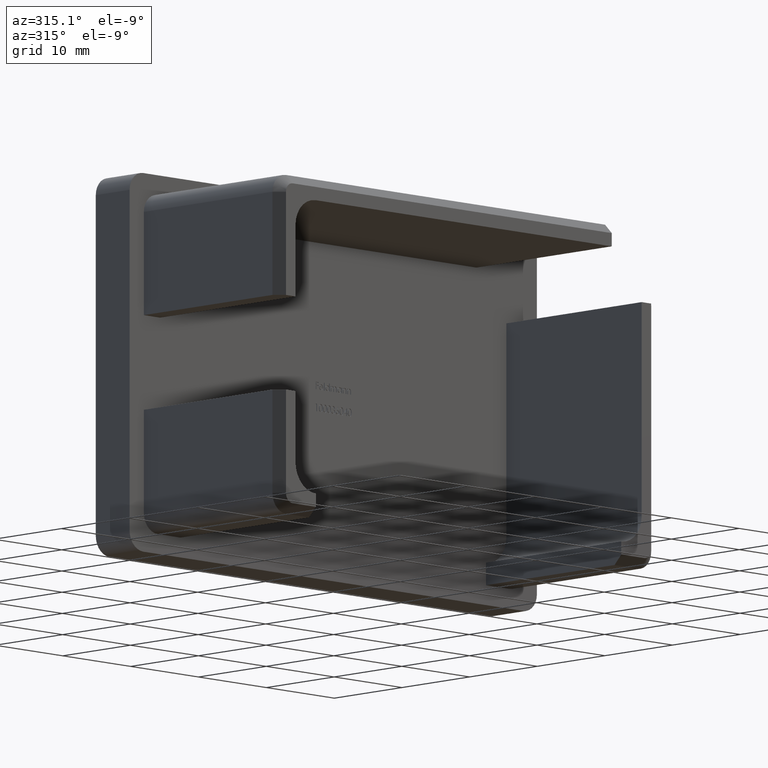
[diagram: clean part render]
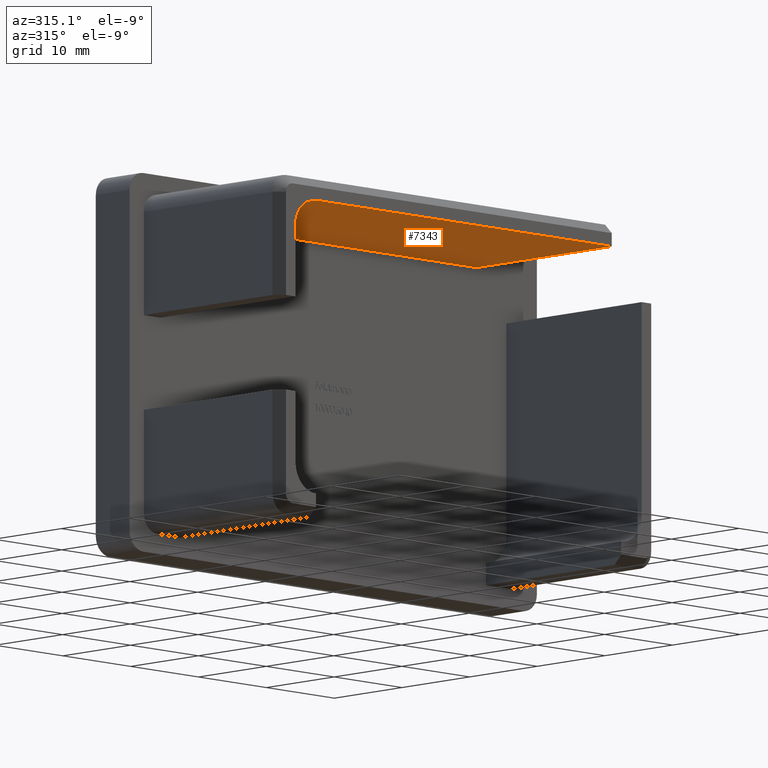
[diagram: same view with one face highlighted and labeled with its STEP entity id]
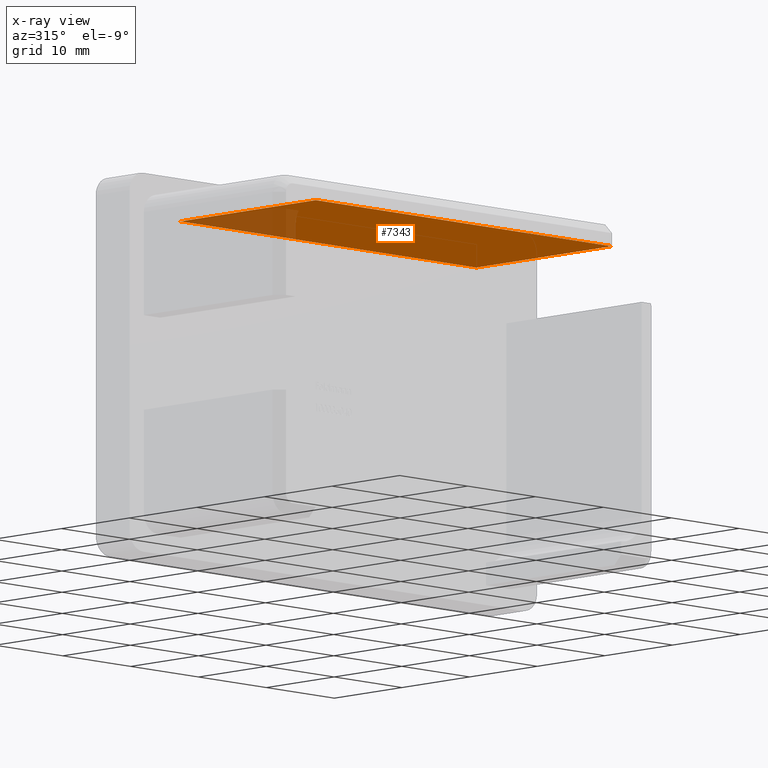
[diagram: x-ray of the same camera — body ghosted, the highlighted face saturated]
A machine part, auxiliary view. The second image highlights one B-rep face of the part: STEP entity #7343.
The next image is the same camera in x-ray: the body ghosted, the highlighted face saturated — about 15% of this face is hidden behind the body in this view.
In plain terms, the highlighted planar face has unit normal (-0, 0, 1).
Its self-contained STEP definition (entity closure, byte-faithful):
#149 = VECTOR ( 'NONE', #9751, 1000.000000000000000 ) ;
#633 = LINE ( 'NONE', #6572, #10865 ) ;
#1138 = EDGE_CURVE ( 'NONE', #10446, #12965, #6549, .T. ) ;
#1222 = VERTEX_POINT ( 'NONE', #6466 ) ;
#1325 = LINE ( 'NONE', #13305, #11206 ) ;
#1579 = CARTESIAN_POINT ( 'NONE',  ( -22.50000000000000400, 0.0000000000000000000, 15.50000000000000400 ) ) ;
#2178 = VERTEX_POINT ( 'NONE', #5336 ) ;
#2388 = EDGE_LOOP ( 'NONE', ( #8005, #13718, #3426, #7561 ) ) ;
#3426 = ORIENTED_EDGE ( 'NONE', *, *, #9212, .T. ) ;
#4042 = DIRECTION ( 'NONE',  ( -0.0000000000000000000, 0.0000000000000000000, 1.000000000000000000 ) ) ;
#4234 = FACE_OUTER_BOUND ( 'NONE', #2388, .T. ) ;
#5140 = DIRECTION ( 'NONE',  ( 1.000000000000000000, 0.0000000000000000000, 0.0000000000000000000 ) ) ;
#5336 = CARTESIAN_POINT ( 'NONE',  ( 21.10000000000000100, 0.0000000000000000000, 15.50000000000000400 ) ) ;
#6466 = CARTESIAN_POINT ( 'NONE',  ( 21.10000000000000100, -20.00000000000000000, 15.50000000000000400 ) ) ;
#6549 = LINE ( 'NONE', #1579, #149 ) ;
#6572 = CARTESIAN_POINT ( 'NONE',  ( 21.10000000000000100, -20.00000000000000000, 15.50000000000000400 ) ) ;
#7343 = ADVANCED_FACE ( 'NONE', ( #4234 ), #14663, .F. ) ;
#7561 = ORIENTED_EDGE ( 'NONE', *, *, #11824, .F. ) ;
#7744 = DIRECTION ( 'NONE',  ( -0.0000000000000000000, 1.000000000000000000, -0.0000000000000000000 ) ) ;
#8005 = ORIENTED_EDGE ( 'NONE', *, *, #9090, .F. ) ;
#9068 = CARTESIAN_POINT ( 'NONE',  ( -22.50000000000000400, 0.0000000000000000000, 15.50000000000000400 ) ) ;
#9090 = EDGE_CURVE ( 'NONE', #10446, #1222, #1325, .T. ) ;
#9212 = EDGE_CURVE ( 'NONE', #12965, #2178, #10245, .T. ) ;
#9751 = DIRECTION ( 'NONE',  ( 0.0000000000000000000, 1.000000000000000000, -0.0000000000000000000 ) ) ;
#9806 = DIRECTION ( 'NONE',  ( 1.000000000000000000, 0.0000000000000000000, 0.0000000000000000000 ) ) ;
#10245 = LINE ( 'NONE', #11125, #10603 ) ;
#10446 = VERTEX_POINT ( 'NONE', #12332 ) ;
#10603 = VECTOR ( 'NONE', #5140, 1000.000000000000000 ) ;
#10865 = VECTOR ( 'NONE', #7744, 1000.000000000000000 ) ;
#11125 = CARTESIAN_POINT ( 'NONE',  ( -25.50000000000000400, 0.0000000000000000000, 15.50000000000000400 ) ) ;
#11206 = VECTOR ( 'NONE', #9806, 1000.000000000000000 ) ;
#11824 = EDGE_CURVE ( 'NONE', #1222, #2178, #633, .T. ) ;
#12332 = CARTESIAN_POINT ( 'NONE',  ( -22.50000000000000400, -20.00000000000000000, 15.50000000000000400 ) ) ;
#12965 = VERTEX_POINT ( 'NONE', #9068 ) ;
#13228 = AXIS2_PLACEMENT_3D ( 'NONE', #13378, #4042, #13328 ) ;
#13305 = CARTESIAN_POINT ( 'NONE',  ( -25.50000000000000400, -20.00000000000000000, 15.50000000000000400 ) ) ;
#13328 = DIRECTION ( 'NONE',  ( 1.000000000000000000, 0.0000000000000000000, 0.0000000000000000000 ) ) ;
#13378 = CARTESIAN_POINT ( 'NONE',  ( -25.50000000000000400, -20.00000000000000000, 15.50000000000000400 ) ) ;
#13718 = ORIENTED_EDGE ( 'NONE', *, *, #1138, .T. ) ;
#14663 = PLANE ( 'NONE',  #13228 ) ;